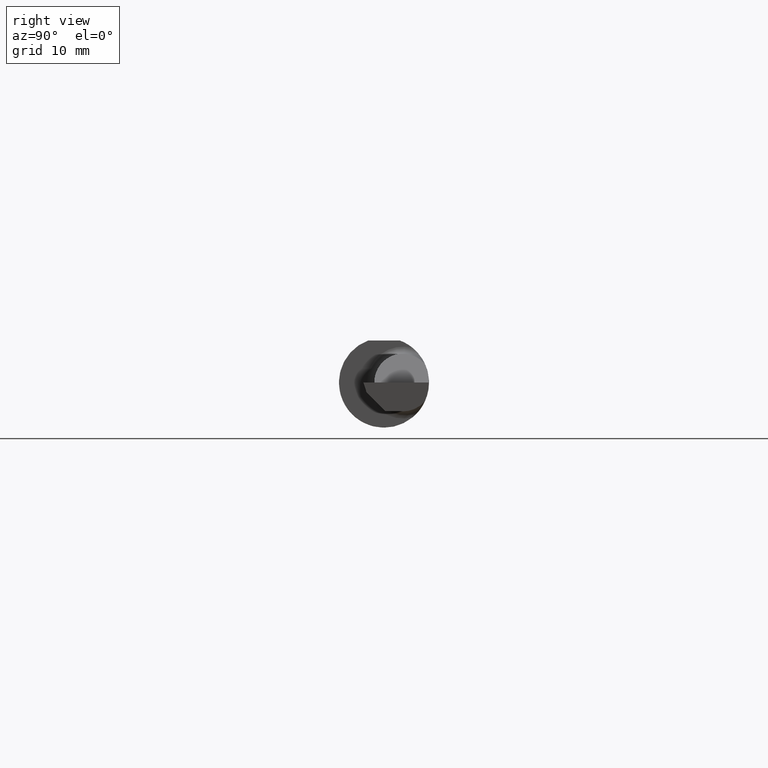
[diagram: clean part render]
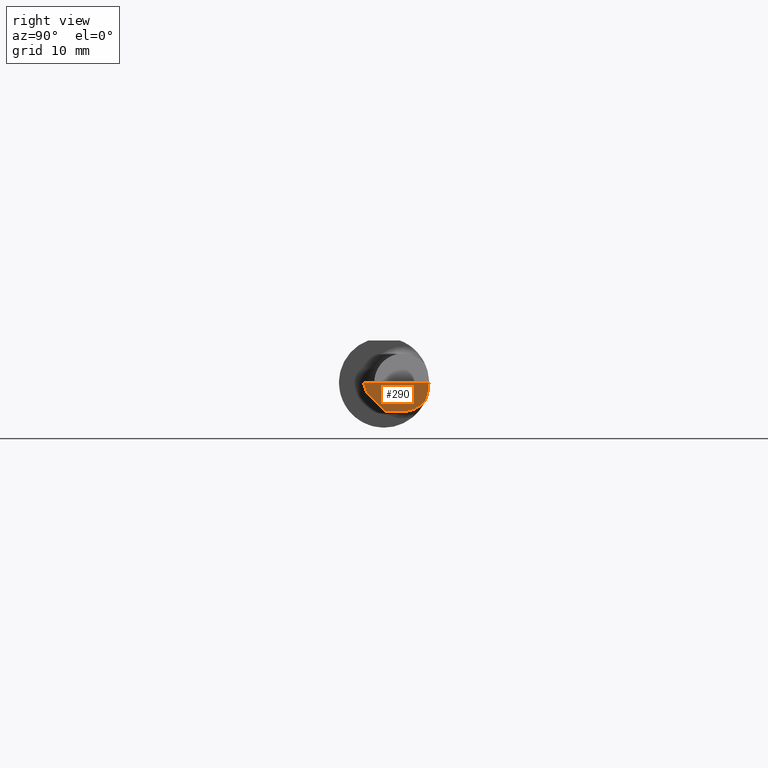
[diagram: same view with one face highlighted and labeled with its STEP entity id]
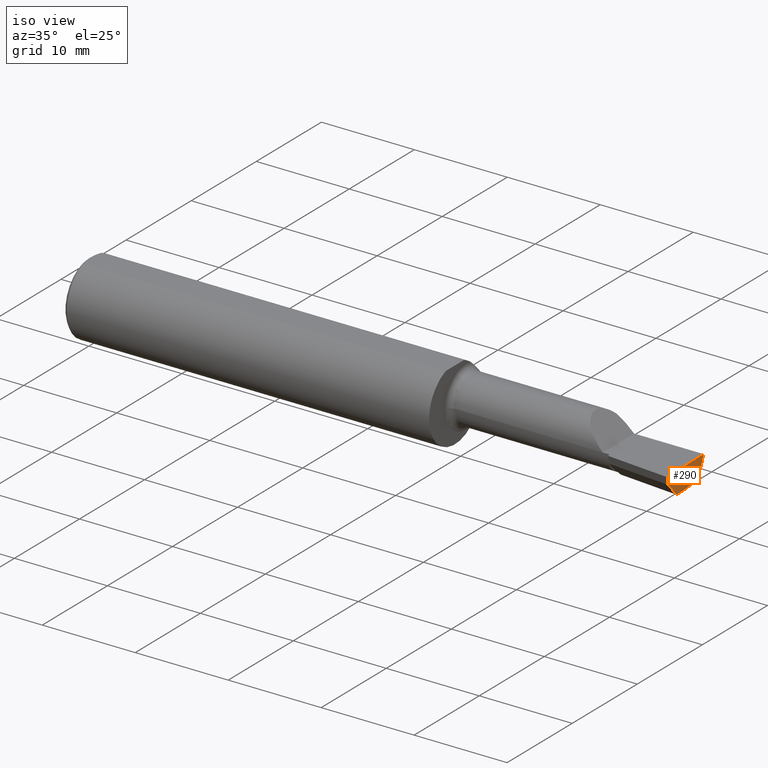
[diagram: same view with one face highlighted and labeled with its STEP entity id]
A machine part, right view. The second image highlights one B-rep face of the part: STEP entity #290.
A second angle (iso view) of the same face is appended — the face is thin or edge-on in the first view.
In plain terms, the highlighted planar face has unit normal (-0.9927, -0.0266, 0.1175).
Its self-contained STEP definition (entity closure, byte-faithful):
#14 = DIRECTION ( 'NONE',  ( 0.02677973311239052051, -0.9996413586354002678, 0.000000000000000000 ) ) ;
#35 = LINE ( 'NONE', #95, #283 ) ;
#38 = DIRECTION ( 'NONE',  ( -0.9927123040216839778, -0.02659410830638028397, 0.1175373763844857478 ) ) ;
#51 = ORIENTED_EDGE ( 'NONE', *, *, #412, .F. ) ;
#54 = VECTOR ( 'NONE', #14, 39.37007874015748854 ) ;
#65 = CARTESIAN_POINT ( 'NONE',  ( 2.490546784200027730, -0.04745170094814316064, -0.07430949365197365986 ) ) ;
#95 = CARTESIAN_POINT ( 'NONE',  ( 2.490723658160492793, -0.02712709695662827644, -0.06821696633277901656 ) ) ;
#99 = CARTESIAN_POINT ( 'NONE',  ( 2.486592206520481518, 0.1419939393939392558, -0.06484544066771610882 ) ) ;
#135 = CARTESIAN_POINT ( 'NONE',  ( 2.504767759937919891, -0.2498722748537978433, 6.782458027410943008E-17 ) ) ;
#138 = VECTOR ( 'NONE', #144, 39.37007874015748143 ) ;
#144 = DIRECTION ( 'NONE',  ( -0.02677973311239052051, 0.9996413586354002678, 2.612414329932748356E-18 ) ) ;
#151 = LINE ( 'NONE', #135, #138 ) ;
#175 = CARTESIAN_POINT ( 'NONE',  ( 2.484488697759745790, 0.06558446243682164445, -0.09990000000000000269 ) ) ;
#191 = VERTEX_POINT ( 'NONE', #223 ) ;
#199 = FACE_OUTER_BOUND ( 'NONE', #490, .T. ) ;
#202 = PLANE ( 'NONE',  #311 ) ;
#205 = CARTESIAN_POINT ( 'NONE',  ( 2.495547506291072359, -0.06038477597192913604, -0.03499999999999992700 ) ) ;
#211 = CARTESIAN_POINT ( 'NONE',  ( 2.484432346890067311, 0.1227037540429562340, -0.08745207517224946880 ) ) ;
#223 = CARTESIAN_POINT ( 'NONE',  ( 2.493892030279779792, 0.1560999999999997945, 6.888552856243478599E-17 ) ) ;
#233 = ORIENTED_EDGE ( 'NONE', *, *, #422, .F. ) ;
#244 = CARTESIAN_POINT ( 'NONE',  ( 2.447241460535985791, -0.07328153097650992598, -0.4459074505892772211 ) ) ;
#281 = DIRECTION ( 'NONE',  ( 0.1199690778467073504, -0.3102690083707254076, 0.9430485474275740465 ) ) ;
#283 = VECTOR ( 'NONE', #526, 39.37007874015748854 ) ;
#286 = EDGE_CURVE ( 'NONE', #506, #191, #151, .T. ) ;
#289 = VERTEX_POINT ( 'NONE', #205 ) ;
#290 = ADVANCED_FACE ( 'NONE', ( #199 ), #202, .F. ) ;
#302 = VERTEX_POINT ( 'NONE', #520 ) ;
#304 = CARTESIAN_POINT ( 'NONE',  ( 2.486592206520481518, 0.1419939393939392558, -0.06484544066771610882 ) ) ;
#311 = AXIS2_PLACEMENT_3D ( 'NONE', #244, #38, #426 ) ;
#316 = CARTESIAN_POINT ( 'NONE',  ( 2.484477565782318376, 0.06599999999999998923, -0.09990000000000000269 ) ) ;
#324 = EDGE_CURVE ( 'NONE', #302, #289, #35, .T. ) ;
#327 =( BOUNDED_CURVE ( )  B_SPLINE_CURVE ( 3, ( #99, #211, #341, #316 ),
 .UNSPECIFIED., .F., .T. ) 
 B_SPLINE_CURVE_WITH_KNOTS ( ( 4, 4 ),
 ( 5.641308543522681518, 6.505699533271584123 ),
 .UNSPECIFIED. ) 
 CURVE ( )  GEOMETRIC_REPRESENTATION_ITEM ( )  RATIONAL_B_SPLINE_CURVE ( ( 1.000000000000000000, 0.9386988813357775019, 0.9386988813357775019, 1.000000000000000000 ) ) 
 REPRESENTATION_ITEM ( '' )  );
#334 = CARTESIAN_POINT ( 'NONE',  ( 2.488761500660856107, 0.1513252362624135372, -0.04441242967472200376 ) ) ;
#341 = CARTESIAN_POINT ( 'NONE',  ( 2.483681434898939333, 0.09571819601686547274, -0.09990000000000004432 ) ) ;
#351 = VERTEX_POINT ( 'NONE', #410 ) ;
#357 = VECTOR ( 'NONE', #281, 39.37007874015748143 ) ;
#383 = VERTEX_POINT ( 'NONE', #304 ) ;
#410 = CARTESIAN_POINT ( 'NONE',  ( 2.484477565782318376, 0.06599999999999998923, -0.09990000000000000269 ) ) ;
#412 = EDGE_CURVE ( 'NONE', #383, #351, #327, .T. ) ;
#422 = EDGE_CURVE ( 'NONE', #289, #506, #655, .T. ) ;
#426 = DIRECTION ( 'NONE',  ( 0.1175789623991730648, 0.000000000000000000, 0.9930635365378861490 ) ) ;
#432 = EDGE_CURVE ( 'NONE', #351, #302, #440, .T. ) ;
#440 = LINE ( 'NONE', #175, #54 ) ;
#442 = EDGE_CURVE ( 'NONE', #191, #383, #599, .T. ) ;
#443 = CARTESIAN_POINT ( 'NONE',  ( 2.500000000000000000, -0.07190000000000008884, 1.024442997624098707E-16 ) ) ;
#452 = ORIENTED_EDGE ( 'NONE', *, *, #286, .F. ) ;
#483 = ORIENTED_EDGE ( 'NONE', *, *, #442, .F. ) ;
#490 = EDGE_LOOP ( 'NONE', ( #452, #233, #585, #623, #51, #483 ) ) ;
#498 = CARTESIAN_POINT ( 'NONE',  ( 2.486592206520481518, 0.1419939393939392558, -0.06484544066771610882 ) ) ;
#506 = VERTEX_POINT ( 'NONE', #443 ) ;
#520 = CARTESIAN_POINT ( 'NONE',  ( 2.486122571438858397, 0.004594769314331956581, -0.09990000000000000269 ) ) ;
#526 = DIRECTION ( 'NONE',  ( 0.1020886612874968985, -0.7038430390621320809, 0.7029814233678642887 ) ) ;
#550 = CARTESIAN_POINT ( 'NONE',  ( 2.493892030279779792, 0.1560999999999997945, 6.888552856243478599E-17 ) ) ;
#585 = ORIENTED_EDGE ( 'NONE', *, *, #324, .F. ) ;
#599 =( BOUNDED_CURVE ( )  B_SPLINE_CURVE ( 3, ( #550, #695, #334, #498 ),
 .UNSPECIFIED., .F., .F. ) 
 B_SPLINE_CURVE_WITH_KNOTS ( ( 4, 4 ),
 ( 4.934903206476686677, 5.363296268785054721 ),
 .UNSPECIFIED. ) 
 CURVE ( )  GEOMETRIC_REPRESENTATION_ITEM ( )  RATIONAL_B_SPLINE_CURVE ( ( 1.000000000000000000, 0.9847649979006014576, 0.9847649979006014576, 1.000000000000000000 ) ) 
 REPRESENTATION_ITEM ( '' )  );
#623 = ORIENTED_EDGE ( 'NONE', *, *, #432, .F. ) ;
#655 = LINE ( 'NONE', #65, #357 ) ;
#695 = CARTESIAN_POINT ( 'NONE',  ( 2.491232419704100920, 0.1561000000000000443, -0.02246288137099513443 ) ) ;